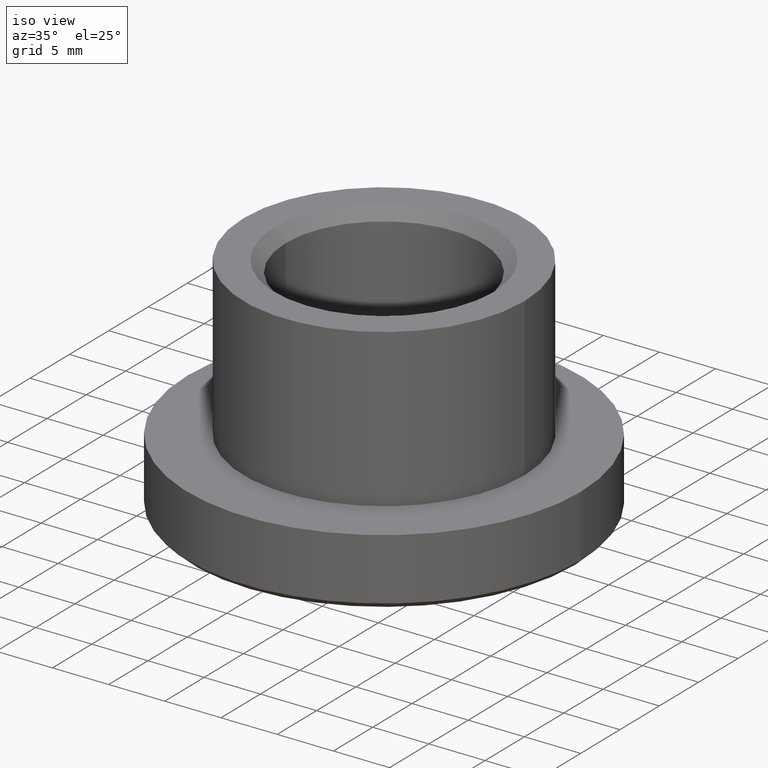
[diagram: clean part render]
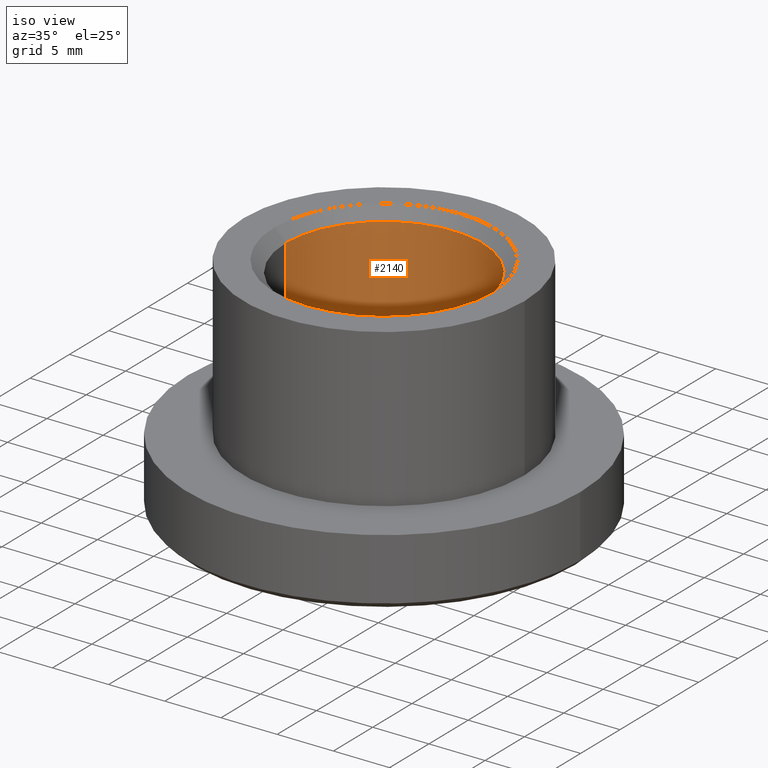
[diagram: same view with one face highlighted and labeled with its STEP entity id]
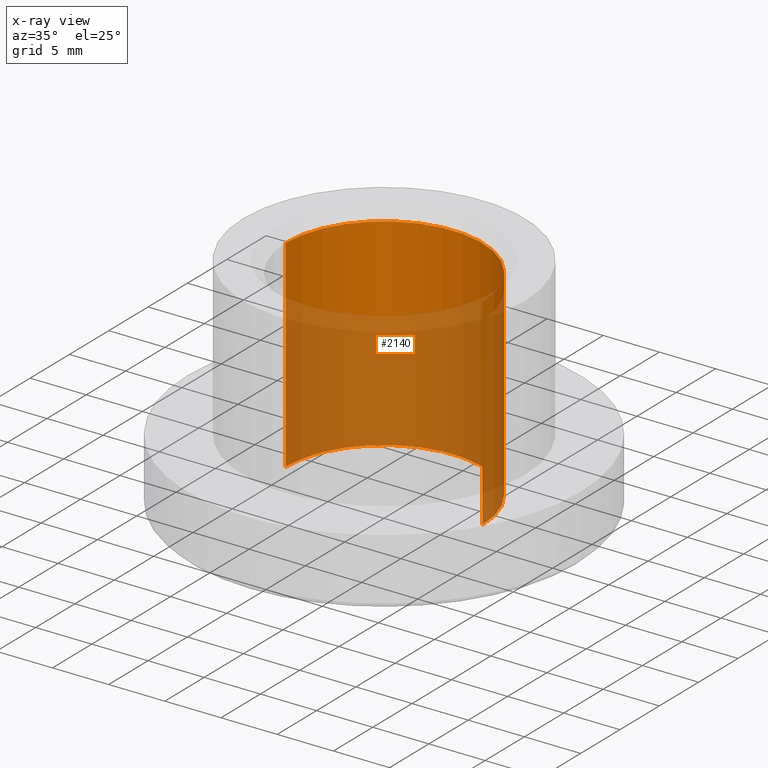
[diagram: x-ray of the same camera — body ghosted, the highlighted face saturated]
A machine part, iso view. The second image highlights one B-rep face of the part: STEP entity #2140.
The next image is the same camera in x-ray: the body ghosted, the highlighted face saturated — about 64% of this face is hidden behind the body in this view.
In plain terms, the highlighted cylindrical surface (partial cylindrical patch) has radius 8.75 mm, axis along (-0, -0, 1).
Its self-contained STEP definition (entity closure, byte-faithful):
#12 = DIRECTION ( 'NONE',  ( 0.000000000000000000, 0.000000000000000000, 1.000000000000000000 ) ) ;
#108 = DIRECTION ( 'NONE',  ( -1.000000000000000000, 0.000000000000000000, 0.000000000000000000 ) ) ;
#217 = VERTEX_POINT ( 'NONE', #8778 ) ;
#455 = AXIS2_PLACEMENT_3D ( 'NONE', #2003, #2188, #4271 ) ;
#488 = FACE_OUTER_BOUND ( 'NONE', #3519, .T. ) ;
#611 = CARTESIAN_POINT ( 'NONE',  ( -8.749999999999994671, 1.071565949253933138E-15, 10.00000000000000000 ) ) ;
#1511 = VERTEX_POINT ( 'NONE', #1561 ) ;
#1561 = CARTESIAN_POINT ( 'NONE',  ( -8.749999999999994671, 1.071565949253933138E-15, 8.999999999999989342 ) ) ;
#1970 = LINE ( 'NONE', #611, #4398 ) ;
#2003 = CARTESIAN_POINT ( 'NONE',  ( 0.000000000000000000, 0.000000000000000000, 10.00000000000000000 ) ) ;
#2140 = ADVANCED_FACE ( 'NONE', ( #488 ), #11765, .F. ) ;
#2188 = DIRECTION ( 'NONE',  ( -0.000000000000000000, -0.000000000000000000, 1.000000000000000000 ) ) ;
#2243 = CARTESIAN_POINT ( 'NONE',  ( 0.000000000000000000, 0.000000000000000000, 8.999999999999989342 ) ) ;
#2518 = LINE ( 'NONE', #10935, #6799 ) ;
#2604 = AXIS2_PLACEMENT_3D ( 'NONE', #6101, #13554, #3773 ) ;
#3319 = DIRECTION ( 'NONE',  ( -0.000000000000000000, -0.000000000000000000, 1.000000000000000000 ) ) ;
#3519 = EDGE_LOOP ( 'NONE', ( #12912, #7888, #8346, #13777 ) ) ;
#3773 = DIRECTION ( 'NONE',  ( 1.000000000000000000, 0.000000000000000000, 0.000000000000000000 ) ) ;
#4079 = EDGE_CURVE ( 'NONE', #12894, #1511, #12768, .T. ) ;
#4271 = DIRECTION ( 'NONE',  ( 1.000000000000000000, 0.000000000000000000, 0.000000000000000000 ) ) ;
#4398 = VECTOR ( 'NONE', #13673, 1000.000000000000000 ) ;
#5426 = EDGE_CURVE ( 'NONE', #217, #12894, #2518, .T. ) ;
#6101 = CARTESIAN_POINT ( 'NONE',  ( 0.000000000000000000, 0.000000000000000000, -8.999999999999989342 ) ) ;
#6248 = AXIS2_PLACEMENT_3D ( 'NONE', #2243, #12, #108 ) ;
#6256 = CARTESIAN_POINT ( 'NONE',  ( -8.749999999999994671, 1.071565949253933138E-15, -8.999999999999989342 ) ) ;
#6799 = VECTOR ( 'NONE', #3319, 1000.000000000000000 ) ;
#7341 = EDGE_CURVE ( 'NONE', #8099, #1511, #1970, .T. ) ;
#7762 = CIRCLE ( 'NONE', #2604, 8.749999999999994671 ) ;
#7888 = ORIENTED_EDGE ( 'NONE', *, *, #9150, .T. ) ;
#8099 = VERTEX_POINT ( 'NONE', #6256 ) ;
#8346 = ORIENTED_EDGE ( 'NONE', *, *, #5426, .T. ) ;
#8778 = CARTESIAN_POINT ( 'NONE',  ( 8.749999999999994671, 0.000000000000000000, -8.999999999999989342 ) ) ;
#9150 = EDGE_CURVE ( 'NONE', #8099, #217, #7762, .T. ) ;
#9210 = CARTESIAN_POINT ( 'NONE',  ( 8.749999999999994671, 0.000000000000000000, 8.999999999999989342 ) ) ;
#10935 = CARTESIAN_POINT ( 'NONE',  ( 8.749999999999994671, 0.000000000000000000, 10.00000000000000000 ) ) ;
#11765 = CYLINDRICAL_SURFACE ( 'NONE', #455, 8.749999999999994671 ) ;
#12768 = CIRCLE ( 'NONE', #6248, 8.749999999999994671 ) ;
#12894 = VERTEX_POINT ( 'NONE', #9210 ) ;
#12912 = ORIENTED_EDGE ( 'NONE', *, *, #7341, .F. ) ;
#13554 = DIRECTION ( 'NONE',  ( -0.000000000000000000, -0.000000000000000000, -1.000000000000000000 ) ) ;
#13673 = DIRECTION ( 'NONE',  ( -0.000000000000000000, -0.000000000000000000, 1.000000000000000000 ) ) ;
#13777 = ORIENTED_EDGE ( 'NONE', *, *, #4079, .T. ) ;